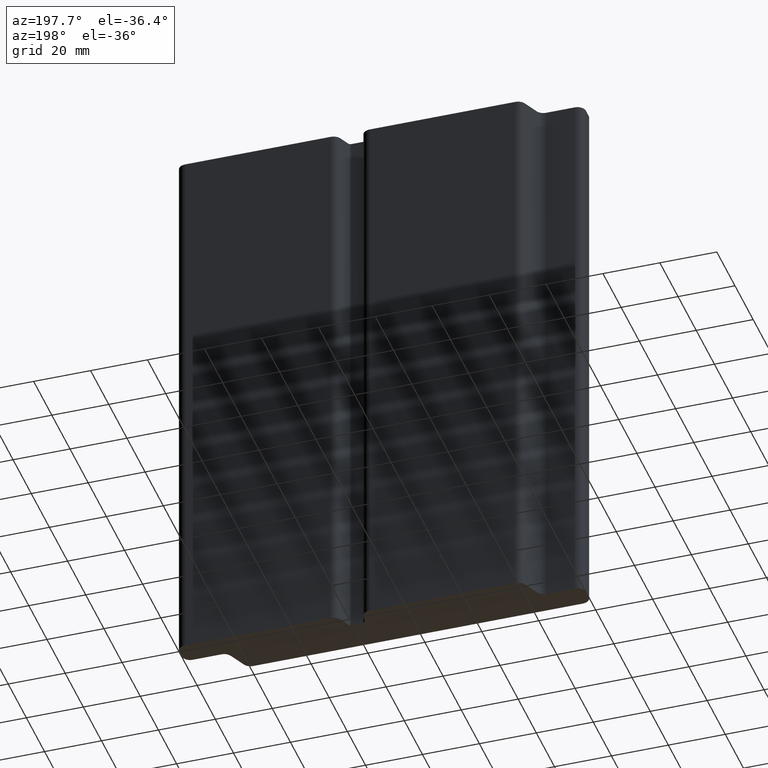
[diagram: clean part render]
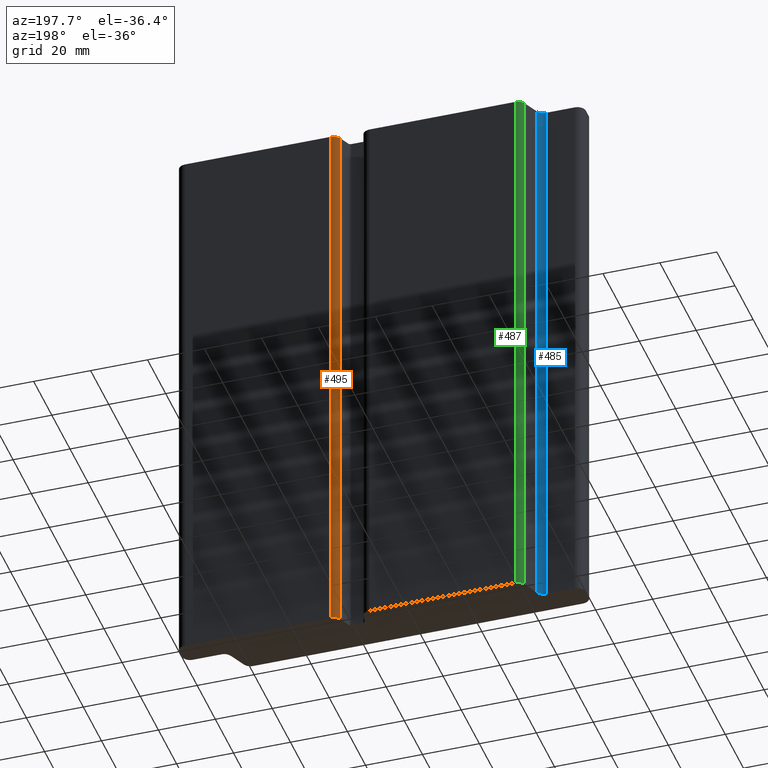
[diagram: same view with three faces highlighted in distinct colors, each labeled with its STEP entity id]
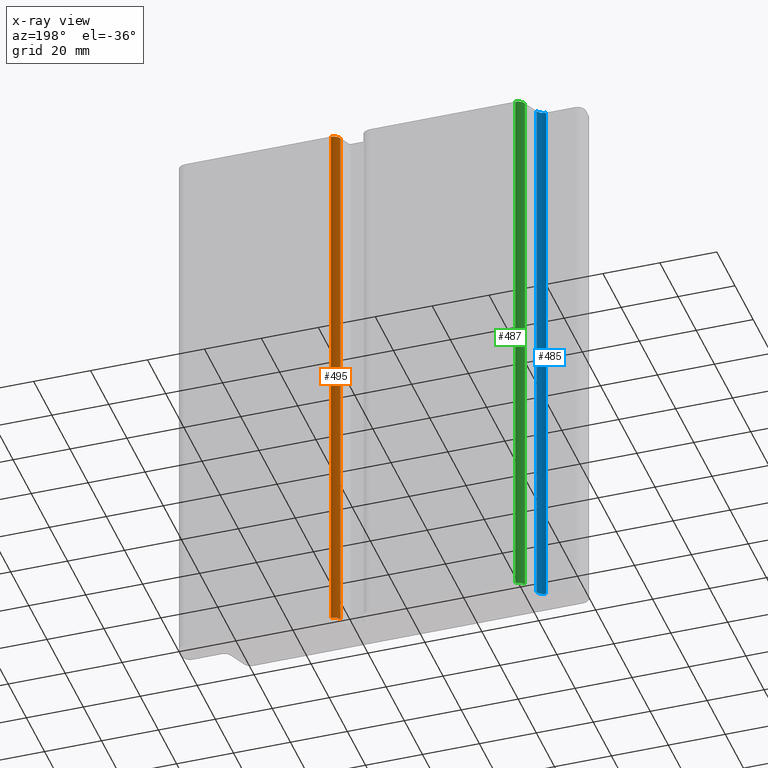
[diagram: x-ray of the same camera — body ghosted, the three highlighted faces saturated]
A machine part, auxiliary view with three faces highlighted in distinct colors.
The next image is the same camera in x-ray (body ghosted, the three faces saturated) — at least one of them is partly hidden behind the body in this view.
Their STEP definitions:

[orange] entity #495 — the highlighted cylindrical surface (edge-blend (fillet) strip) has radius 3 mm, axis along (0, 0, 1).
#47=FACE_OUTER_BOUND('',#73,.T.);
#73=EDGE_LOOP('',(#393,#394,#395,#396));
#117=LINE('',#828,#165);
#118=LINE('',#834,#166);
#165=VECTOR('',#677,10.);
#166=VECTOR('',#684,10.);
#195=CIRCLE('',#554,3.0000000000016);
#196=CIRCLE('',#555,3.0000000000016);
#237=VERTEX_POINT('',#824);
#238=VERTEX_POINT('',#826);
#239=VERTEX_POINT('',#830);
#240=VERTEX_POINT('',#832);
#303=EDGE_CURVE('',#237,#238,#117,.T.);
#304=EDGE_CURVE('',#239,#237,#195,.T.);
#305=EDGE_CURVE('',#240,#238,#196,.T.);
#306=EDGE_CURVE('',#239,#240,#118,.T.);
#393=ORIENTED_EDGE('',*,*,#304,.T.);
#394=ORIENTED_EDGE('',*,*,#303,.T.);
#395=ORIENTED_EDGE('',*,*,#305,.F.);
#396=ORIENTED_EDGE('',*,*,#306,.F.);
#474=CYLINDRICAL_SURFACE('',#553,3.0000000000016);
#495=ADVANCED_FACE('',(#47),#474,.T.);
#553=AXIS2_PLACEMENT_3D('',#829,#678,#679);
#554=AXIS2_PLACEMENT_3D('',#831,#680,#681);
#555=AXIS2_PLACEMENT_3D('',#833,#682,#683);
#677=DIRECTION('',(0.,0.,1.));
#678=DIRECTION('center_axis',(0.,0.,1.));
#679=DIRECTION('ref_axis',(0.,1.,0.));
#680=DIRECTION('center_axis',(0.,0.,1.));
#681=DIRECTION('ref_axis',(0.,1.,0.));
#682=DIRECTION('center_axis',(0.,0.,1.));
#683=DIRECTION('ref_axis',(0.,1.,0.));
#684=DIRECTION('',(0.,0.,1.));
#824=CARTESIAN_POINT('',(4.52836611171122,16.2202099292967,0.));
#826=CARTESIAN_POINT('',(4.52836611171122,16.2202099292967,200.));
#828=CARTESIAN_POINT('',(4.52836611171122,16.2202099292967,0.));
#829=CARTESIAN_POINT('Origin',(7.26900248464049,15.0000000000686,0.));
#830=CARTESIAN_POINT('',(7.26900248464049,18.0000000000702,0.));
#831=CARTESIAN_POINT('Origin',(7.26900248464049,15.0000000000686,0.));
#832=CARTESIAN_POINT('',(7.26900248464049,18.0000000000702,200.));
#833=CARTESIAN_POINT('Origin',(7.26900248464049,15.0000000000686,200.));
#834=CARTESIAN_POINT('',(7.26900248464049,18.0000000000702,0.));

[blue] entity #485 — the highlighted cylindrical surface (edge-blend (fillet) strip) has radius 3 mm, axis along (0, 0, 1).
#37=FACE_OUTER_BOUND('',#63,.T.);
#63=EDGE_LOOP('',(#353,#354,#355,#356));
#97=LINE('',#768,#145);
#98=LINE('',#774,#146);
#145=VECTOR('',#617,10.);
#146=VECTOR('',#624,10.);
#185=CIRCLE('',#534,3.00000000001392);
#186=CIRCLE('',#535,3.00000000001392);
#217=VERTEX_POINT('',#764);
#218=VERTEX_POINT('',#766);
#219=VERTEX_POINT('',#770);
#220=VERTEX_POINT('',#772);
#273=EDGE_CURVE('',#217,#218,#97,.T.);
#274=EDGE_CURVE('',#217,#219,#185,.T.);
#275=EDGE_CURVE('',#220,#218,#186,.T.);
#276=EDGE_CURVE('',#219,#220,#98,.T.);
#353=ORIENTED_EDGE('',*,*,#274,.F.);
#354=ORIENTED_EDGE('',*,*,#273,.T.);
#355=ORIENTED_EDGE('',*,*,#275,.F.);
#356=ORIENTED_EDGE('',*,*,#276,.F.);
#469=CYLINDRICAL_SURFACE('',#533,3.00000000001392);
#485=ADVANCED_FACE('',(#37),#469,.F.);
#533=AXIS2_PLACEMENT_3D('',#769,#618,#619);
#534=AXIS2_PLACEMENT_3D('',#771,#620,#621);
#535=AXIS2_PLACEMENT_3D('',#773,#622,#623);
#617=DIRECTION('',(0.,0.,1.));
#618=DIRECTION('center_axis',(0.,0.,1.));
#619=DIRECTION('ref_axis',(0.,-1.,0.));
#620=DIRECTION('center_axis',(0.,0.,1.));
#621=DIRECTION('ref_axis',(0.,-1.,0.));
#622=DIRECTION('center_axis',(0.,0.,-1.));
#623=DIRECTION('ref_axis',(0.,-1.,0.));
#624=DIRECTION('',(0.,0.,1.));
#764=CARTESIAN_POINT('',(-65.4515572236599,9.,0.));
#766=CARTESIAN_POINT('',(-65.4515572236599,9.,200.));
#768=CARTESIAN_POINT('',(-65.4515572236599,9.,0.));
#769=CARTESIAN_POINT('Origin',(-65.4515572236599,12.0000000000139,0.));
#770=CARTESIAN_POINT('',(-62.7109208507193,10.7797900707809,0.));
#771=CARTESIAN_POINT('Origin',(-65.4515572236599,12.0000000000139,0.));
#772=CARTESIAN_POINT('',(-62.7109208507194,10.7797900707809,200.));
#773=CARTESIAN_POINT('Origin',(-65.4515572236599,12.0000000000139,200.));
#774=CARTESIAN_POINT('',(-62.7109208507193,10.7797900707809,0.));

[green] entity #487 — the highlighted cylindrical surface (edge-blend (fillet) strip) has radius 3 mm, axis along (0, 0, 1).
#39=FACE_OUTER_BOUND('',#65,.T.);
#65=EDGE_LOOP('',(#361,#362,#363,#364));
#101=LINE('',#780,#149);
#102=LINE('',#786,#150);
#149=VECTOR('',#629,10.);
#150=VECTOR('',#636,10.);
#187=CIRCLE('',#538,3.00000000003039);
#188=CIRCLE('',#539,3.00000000003039);
#221=VERTEX_POINT('',#776);
#222=VERTEX_POINT('',#778);
#223=VERTEX_POINT('',#782);
#224=VERTEX_POINT('',#784);
#279=EDGE_CURVE('',#221,#222,#101,.T.);
#280=EDGE_CURVE('',#223,#221,#187,.T.);
#281=EDGE_CURVE('',#224,#222,#188,.T.);
#282=EDGE_CURVE('',#223,#224,#102,.T.);
#361=ORIENTED_EDGE('',*,*,#280,.T.);
#362=ORIENTED_EDGE('',*,*,#279,.T.);
#363=ORIENTED_EDGE('',*,*,#281,.F.);
#364=ORIENTED_EDGE('',*,*,#282,.F.);
#470=CYLINDRICAL_SURFACE('',#537,3.00000000003039);
#487=ADVANCED_FACE('',(#39),#470,.T.);
#537=AXIS2_PLACEMENT_3D('',#781,#630,#631);
#538=AXIS2_PLACEMENT_3D('',#783,#632,#633);
#539=AXIS2_PLACEMENT_3D('',#785,#634,#635);
#629=DIRECTION('',(0.,0.,1.));
#630=DIRECTION('center_axis',(0.,0.,1.));
#631=DIRECTION('ref_axis',(7.69754630398978E-13,1.,0.));
#632=DIRECTION('center_axis',(0.,0.,1.));
#633=DIRECTION('ref_axis',(7.69754630398978E-13,1.,0.));
#634=DIRECTION('center_axis',(0.,0.,1.));
#635=DIRECTION('ref_axis',(7.69754630398978E-13,1.,0.));
#636=DIRECTION('',(0.,0.,1.));
#776=CARTESIAN_POINT('',(-60.2886898696447,16.2202099291634,0.));
#778=CARTESIAN_POINT('',(-60.2886898696447,16.2202099291634,200.));
#780=CARTESIAN_POINT('',(-60.2886898696447,16.2202099291634,0.));
#781=CARTESIAN_POINT('Origin',(-57.5480534966892,14.9999999999236,0.));
#782=CARTESIAN_POINT('',(-57.5480534966869,17.999999999954,0.));
#783=CARTESIAN_POINT('Origin',(-57.5480534966892,14.9999999999236,0.));
#784=CARTESIAN_POINT('',(-57.5480534966869,17.999999999954,200.));
#785=CARTESIAN_POINT('Origin',(-57.5480534966892,14.9999999999236,200.));
#786=CARTESIAN_POINT('',(-57.5480534966869,17.999999999954,0.));